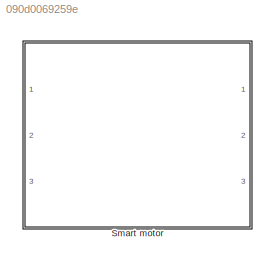
MODEL slx_090d0069259e
KIND model
CONFIG AbsTol = auto
CONFIG EnableMultiTasking = off
CONFIG FixedStep = auto
CONFIG MaxStep = auto
CONFIG MinStep = auto
CONFIG RelTol = 1e-3
CONFIG SampleTimeConstraint = Unconstrained
CONFIG SolverName = VariableStepAuto
CONFIG StartTime = 0.0
CONFIG StopTime = 60
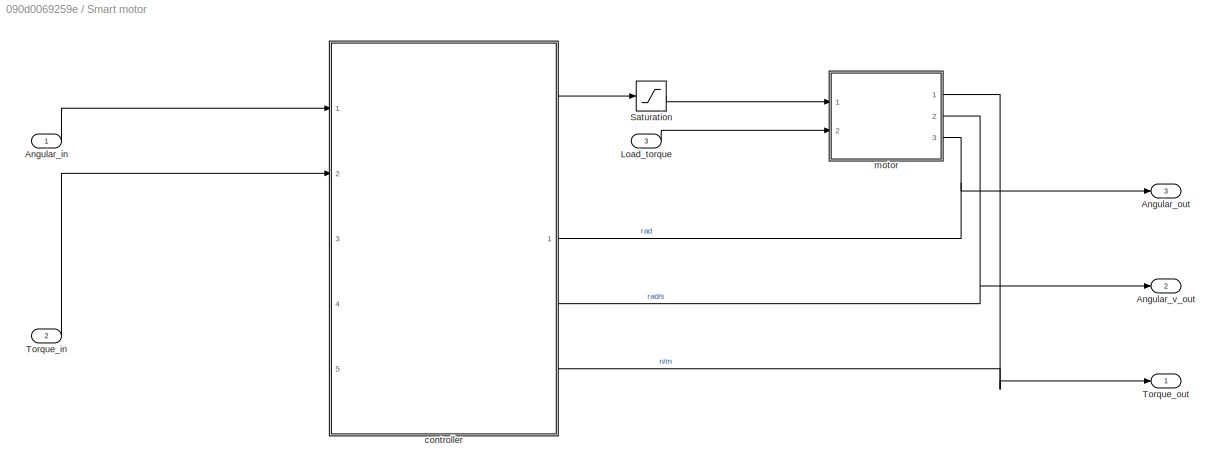
BLOCK [SubSystem] Smart motor
  Ports = [3, 3]
  RequestExecContextInheritance = off
BLOCK [Inport] Smart motor/Angular_in
BLOCK [Outport] Smart motor/Angular_out
  Port = 3
BLOCK [Outport] Smart motor/Angular_v_out
  Port = 2
BLOCK [Inport] Smart motor/Load_torque
  Port = 3
BLOCK [Saturate] Smart motor/Saturation
  LowerLimit = -12
  UpperLimit = 12
BLOCK [Inport] Smart motor/Torque_in
  Port = 2
BLOCK [Outport] Smart motor/Torque_out
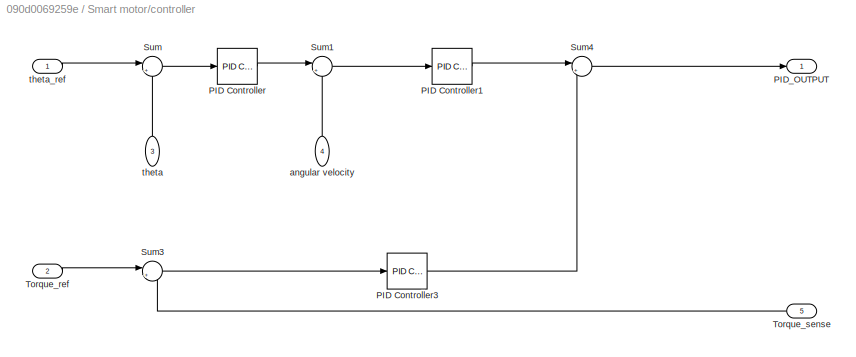
BLOCK [SubSystem] Smart motor/controller
  PortSchema = {"entries":[{"content":{"sides":[{"content":{"connectorIds":["In1","In2"]},"type":"ConnectorPlacement.EquallySpacedRectSide","uuid":"8a7634be-fa1b-404b-89a0-2c01fe6be74e"},{"content":{"connectorIds":["Out1","In3","In4","In5"],"side":"RIGHT"},"type":"ConnectorPlacement.EquallySpacedRectSide","uuid":"8f130a65-85af-479a-b8ce-1781e3e6a993"},{"content":{"connectorIds":[],"side":"TOP"},"type":"Connector...<+264ch>
  Ports = [5, 1]
  RequestExecContextInheritance = off
BLOCK [Reference] Smart motor/controller/PID Controller  REF=slpidlib/PID Controller
  Ports = [1, 1]
  SourceBlock = slpidlib/PID Controller
  SourceProductBaseCode = SL
  SourceType = PID 1dof
BLOCK [Reference] Smart motor/controller/PID Controller1  REF=slpidlib/PID Controller
  Ports = [1, 1]
  SourceBlock = slpidlib/PID Controller
  SourceProductBaseCode = SL
  SourceType = PID 1dof
BLOCK [Reference] Smart motor/controller/PID Controller3  REF=slpidlib/PID Controller
  Ports = [1, 1]
  SourceBlock = slpidlib/PID Controller
  SourceProductBaseCode = SL
  SourceType = PID 1dof
BLOCK [Outport] Smart motor/controller/PID_OUTPUT
BLOCK [Sum] Smart motor/controller/Sum
  Inputs = |+-
  Ports = [2, 1]
BLOCK [Sum] Smart motor/controller/Sum1
  Inputs = |+-
  Ports = [2, 1]
BLOCK [Sum] Smart motor/controller/Sum3
  Inputs = |+-
  Ports = [2, 1]
BLOCK [Sum] Smart motor/controller/Sum4
  Inputs = |++
  Ports = [2, 1]
BLOCK [Inport] Smart motor/controller/Torque_ref
  Port = 2
BLOCK [Inport] Smart motor/controller/Torque_sense
  NameLocation = top
  Port = 5
BLOCK [Inport] Smart motor/controller/angular velocity
  NameLocation = right
  Port = 4
BLOCK [Inport] Smart motor/controller/theta
  NameLocation = right
  Port = 3
BLOCK [Inport] Smart motor/controller/theta_ref
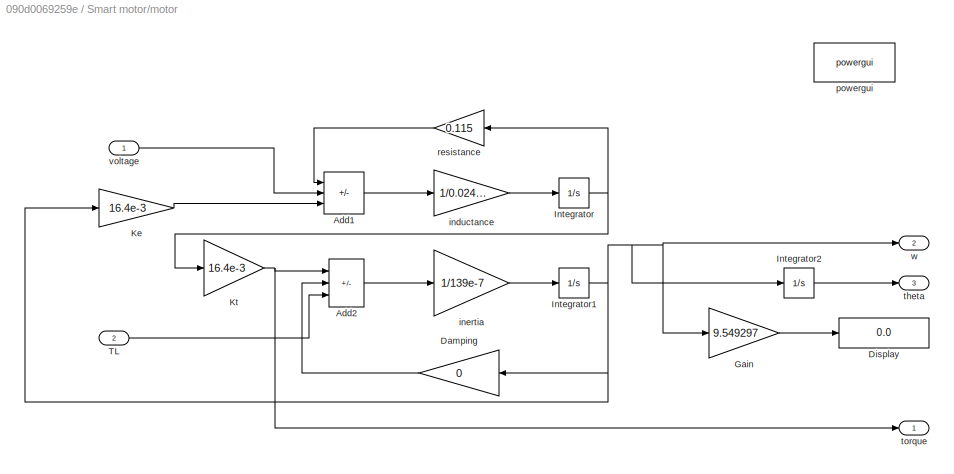
BLOCK [SubSystem] Smart motor/motor
  Ports = [2, 3]
  RequestExecContextInheritance = off
BLOCK [Sum] Smart motor/motor/Add1
  IconShape = rectangular
  Inputs = -+-
  Ports = [3, 1]
BLOCK [Sum] Smart motor/motor/Add2
  IconShape = rectangular
  Inputs = +-+
  Ports = [3, 1]
BLOCK [Gain] Smart motor/motor/Damping
  Gain = 0
  NameLocation = top
BLOCK [Display] Smart motor/motor/Display
  Decimation = 1
  Ports = [1]
BLOCK [Gain] Smart motor/motor/Gain
  Gain = 9.549297
BLOCK [Integrator] Smart motor/motor/Integrator
  Ports = [1, 1]
BLOCK [Integrator] Smart motor/motor/Integrator1
  Ports = [1, 1]
BLOCK [Integrator] Smart motor/motor/Integrator2
  Ports = [1, 1]
BLOCK [Gain] Smart motor/motor/Ke
  Gain = 16.4e-3
BLOCK [Gain] Smart motor/motor/Kt
  Gain = 16.4e-3
BLOCK [Inport] Smart motor/motor/TL
  Port = 2
BLOCK [Gain] Smart motor/motor/inductance
  Gain = 1/0.0245e-3
BLOCK [Gain] Smart motor/motor/inertia
  Gain = 1/139e-7
BLOCK [Reference] Smart motor/motor/powergui  REF=spspowerguiLib/powergui
  Ports = []
  Priority = 1
  SourceBlock = spspowerguiLib/powergui
  SourceProductBaseCode = PS
  SourceType = PSB option menu block
BLOCK [Gain] Smart motor/motor/resistance
  Gain = 0.115
  NameLocation = top
BLOCK [Outport] Smart motor/motor/theta
  Port = 3
BLOCK [Outport] Smart motor/motor/torque
BLOCK [Inport] Smart motor/motor/voltage
BLOCK [Outport] Smart motor/motor/w
  Port = 2
LINE Smart motor/Angular_in:1 -> Smart motor/controller:1
LINE Smart motor/Load_torque:1 -> Smart motor/motor:2
LINE Smart motor/Saturation:1 -> Smart motor/motor:1
LINE Smart motor/Torque_in:1 -> Smart motor/controller:2
LINE Smart motor/controller/PID Controller1:1 -> Smart motor/controller/Sum4:1
LINE Smart motor/controller/PID Controller3:1 -> Smart motor/controller/Sum4:2
LINE Smart motor/controller/PID Controller:1 -> Smart motor/controller/Sum1:1
LINE Smart motor/controller/Sum1:1 -> Smart motor/controller/PID Controller1:1
LINE Smart motor/controller/Sum3:1 -> Smart motor/controller/PID Controller3:1
LINE Smart motor/controller/Sum4:1 -> Smart motor/controller/PID_OUTPUT:1
LINE Smart motor/controller/Sum:1 -> Smart motor/controller/PID Controller:1
LINE Smart motor/controller/Torque_ref:1 -> Smart motor/controller/Sum3:1
LINE Smart motor/controller/Torque_sense:1 -> Smart motor/controller/Sum3:2
LINE Smart motor/controller/angular velocity:1 -> Smart motor/controller/Sum1:2
LINE Smart motor/controller/theta:1 -> Smart motor/controller/Sum:2
LINE Smart motor/controller/theta_ref:1 -> Smart motor/controller/Sum:1
LINE Smart motor/controller:1 -> Smart motor/Saturation:1
LINE Smart motor/motor/Add1:1 -> Smart motor/motor/inductance:1
LINE Smart motor/motor/Add2:1 -> Smart motor/motor/inertia:1
LINE Smart motor/motor/Damping:1 -> Smart motor/motor/Add2:2
LINE Smart motor/motor/Gain:1 -> Smart motor/motor/Display:1
NET Smart motor/motor/Integrator1:1 -> Smart motor/motor/Damping:1, Smart motor/motor/Gain:1, Smart motor/motor/Integrator2:1, Smart motor/motor/Ke:1, Smart motor/motor/w:1
LINE Smart motor/motor/Integrator2:1 -> Smart motor/motor/theta:1
NET Smart motor/motor/Integrator:1 -> Smart motor/motor/Kt:1, Smart motor/motor/resistance:1
LINE Smart motor/motor/Ke:1 -> Smart motor/motor/Add1:3
NET Smart motor/motor/Kt:1 -> Smart motor/motor/Add2:1, Smart motor/motor/torque:1
LINE Smart motor/motor/TL:1 -> Smart motor/motor/Add2:3
LINE Smart motor/motor/inductance:1 -> Smart motor/motor/Integrator:1
LINE Smart motor/motor/inertia:1 -> Smart motor/motor/Integrator1:1
LINE Smart motor/motor/resistance:1 -> Smart motor/motor/Add1:1
LINE Smart motor/motor/voltage:1 -> Smart motor/motor/Add1:2
NET Smart motor/motor:1 -> Smart motor/Torque_out:1, Smart motor/controller:5
NET Smart motor/motor:2 -> Smart motor/Angular_v_out:1, Smart motor/controller:4
NET Smart motor/motor:3 -> Smart motor/Angular_out:1, Smart motor/controller:3
note: NET lines group one-source signal fan-out (src -> all destinations, sorted); 1:1 wires keep LINE
